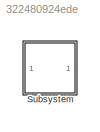
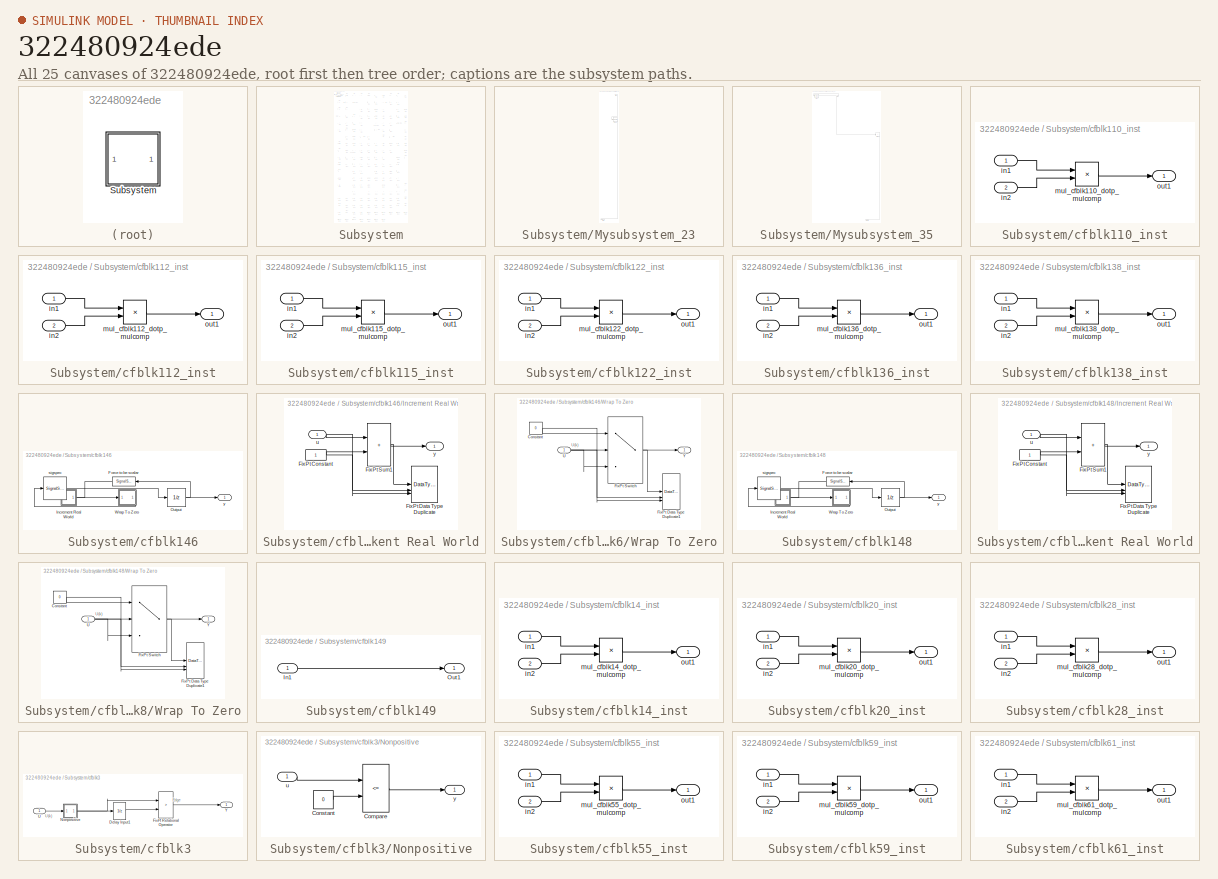
[diagram: thumbnail index - all 25 canvases of the model, root first then tree order]
MODEL slx_322480924ede
KIND model
CONFIG AbsTol = auto
CONFIG EnableMultiTasking = off
CONFIG FixedStep = auto
CONFIG MaxStep = auto
CONFIG MinStep = auto
CONFIG RelTol = 1e-3
CONFIG SampleTimeConstraint = Unconstrained
CONFIG SolverName = VariableStepAuto
CONFIG StartTime = 0.0
CONFIG StopTime = 10.0
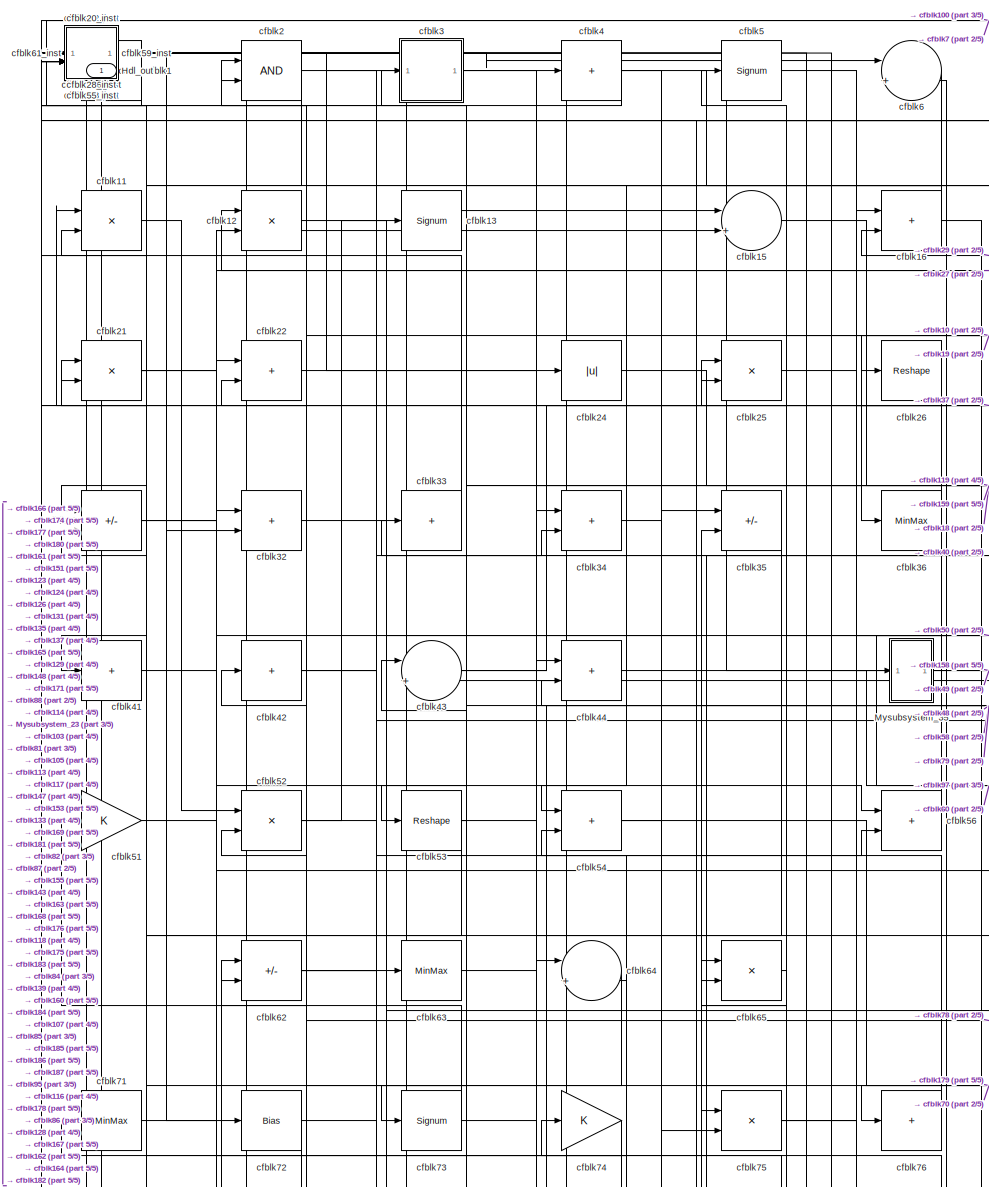
[diagram: Subsystem - part 1/5, top left region]
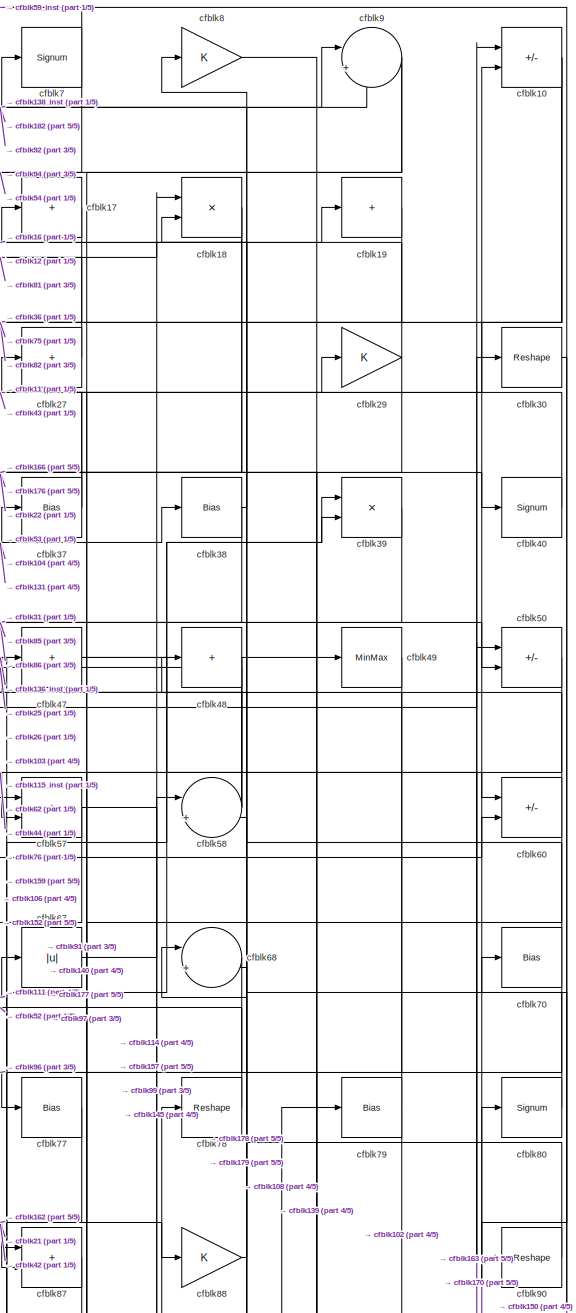
[diagram: Subsystem - part 2/5, top right region]
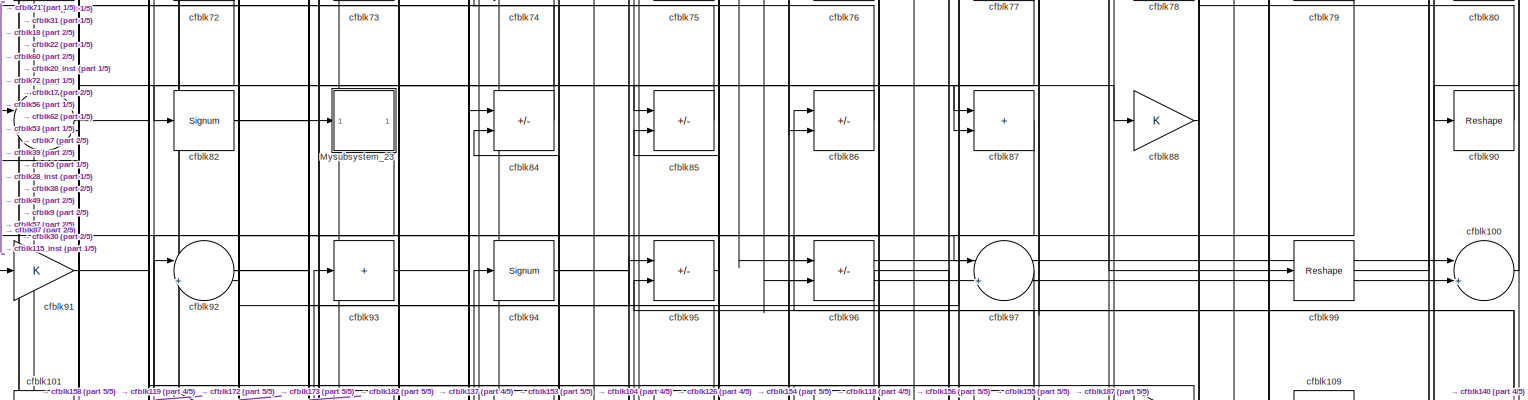
[diagram: Subsystem - part 3/5, full width, middle band]
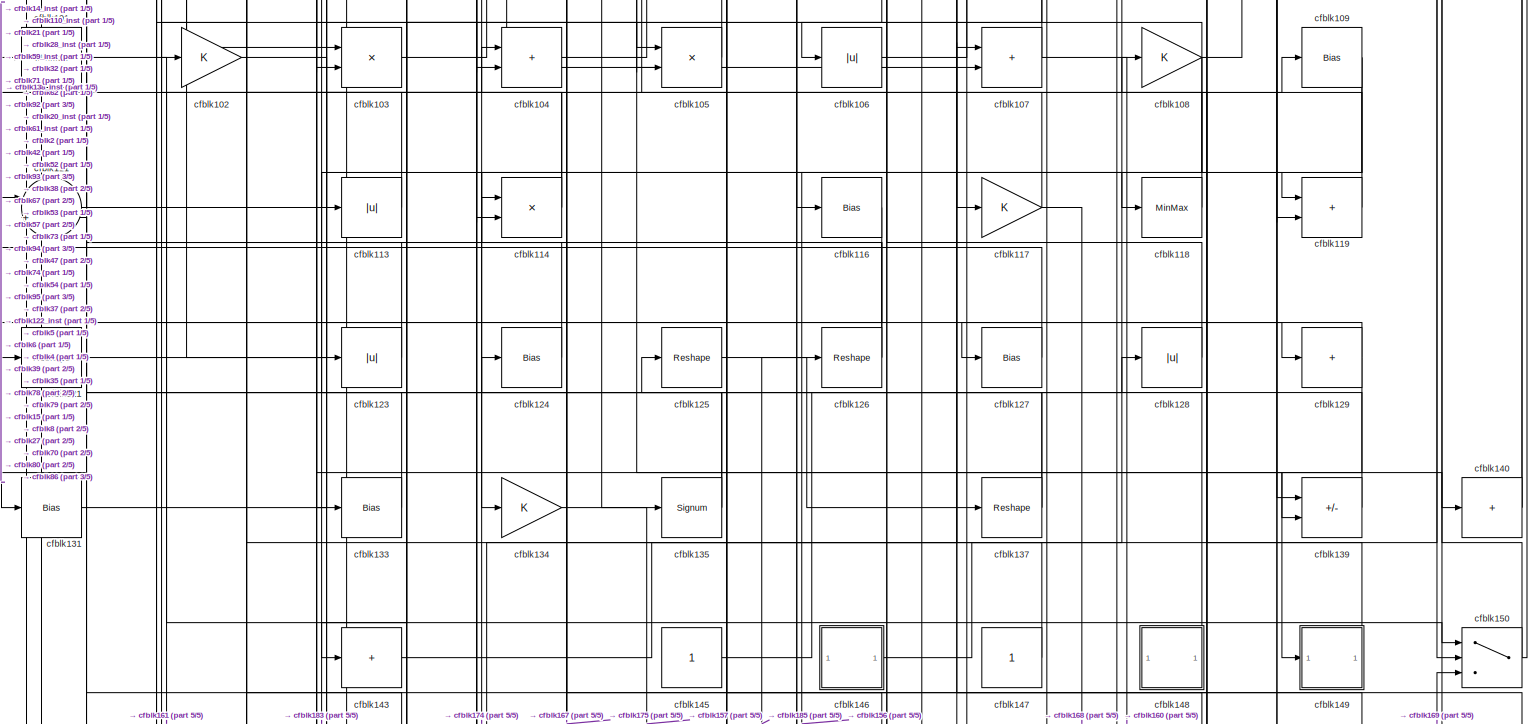
[diagram: Subsystem - part 4/5, full width, middle band]
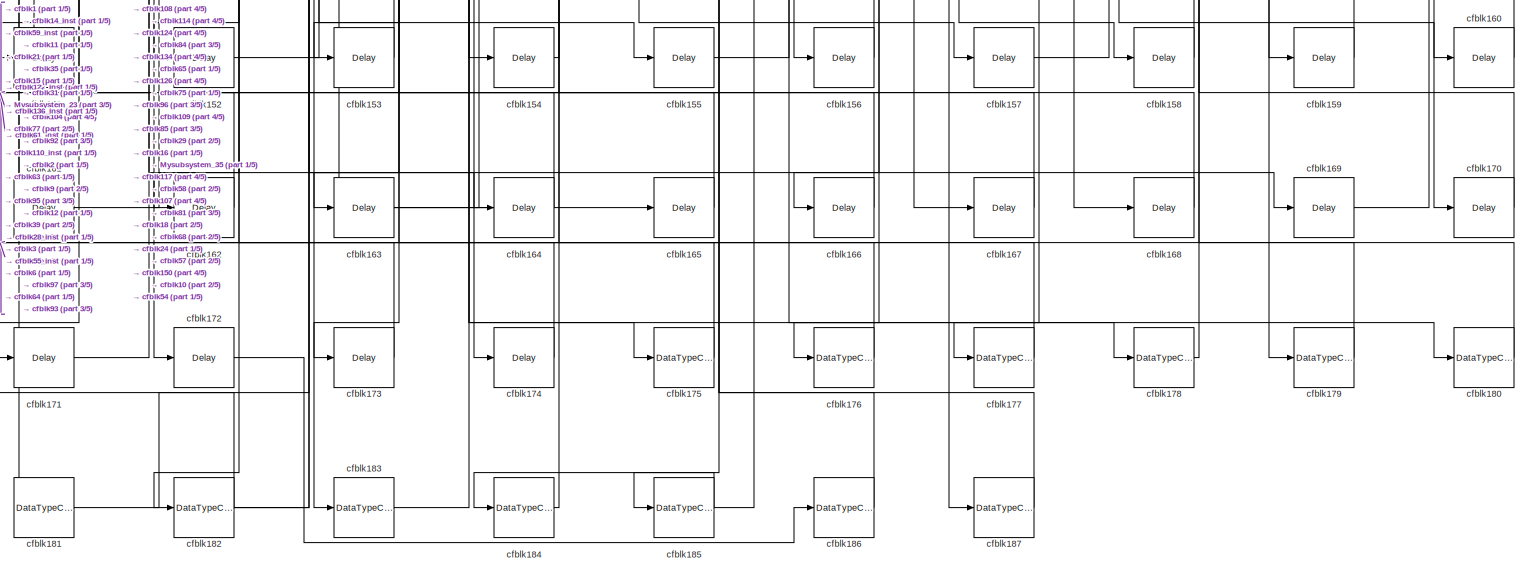
[diagram: Subsystem - part 5/5, full width, bottom band]
BLOCK [SubSystem] Subsystem
BLOCK [Outport] Subsystem/Hdl_out
  OutDataTypeStr = uint8
  SampleTime = 1
BLOCK [SubSystem] Subsystem/Mysubsystem_23
BLOCK [Inport] Subsystem/Mysubsystem_23/In1
  OutDataTypeStr = uint8
  PortDimensions = 1
  SampleTime = 1
BLOCK [Outport] Subsystem/Mysubsystem_23/Out1
  SampleTime = 1
BLOCK [Reshape] Subsystem/Mysubsystem_23/cfblk83
BLOCK [SubSystem] Subsystem/Mysubsystem_35
BLOCK [Inport] Subsystem/Mysubsystem_35/In1
  OutDataTypeStr = uint8
  PortDimensions = 1
  SampleTime = 1
BLOCK [Outport] Subsystem/Mysubsystem_35/Out1
  SampleTime = 1
BLOCK [Signum] Subsystem/Mysubsystem_35/cfblk23
BLOCK [Sum] Subsystem/Mysubsystem_35/cfblk69
  IconShape = rectangular
  Inputs = +
BLOCK [Reference] Subsystem/cfblk1  REF=hdlsllib/Logic and Bit
Operations/Bit Slice
  SourceBlock = hdlsllib/Logic and Bit\nOperations/Bit Slice
  SourceType = Bit Slice
BLOCK [Sum] Subsystem/cfblk10
  IconShape = rectangular
  Inputs = +-
  OutDataTypeStr = uint8
BLOCK [Sum] Subsystem/cfblk100
  Inputs = |++
  OutDataTypeStr = uint8
BLOCK [MinMax] Subsystem/cfblk101
  OutDataTypeStr = uint8
BLOCK [Gain] Subsystem/cfblk102
  OutDataTypeStr = uint8
BLOCK [Product] Subsystem/cfblk103
  Inputs = */
  OutDataTypeStr = uint8
  RndMeth = Zero
  SaturateOnIntegerOverflow = on
BLOCK [Sum] Subsystem/cfblk104
  IconShape = rectangular
  OutDataTypeStr = uint8
BLOCK [Product] Subsystem/cfblk105
  Inputs = */
  OutDataTypeStr = uint8
  RndMeth = Zero
  SaturateOnIntegerOverflow = on
BLOCK [Abs] Subsystem/cfblk106
  OutDataTypeStr = uint8
  SaturateOnIntegerOverflow = off
BLOCK [Sum] Subsystem/cfblk107
  IconShape = rectangular
  OutDataTypeStr = uint8
BLOCK [Gain] Subsystem/cfblk108
  OutDataTypeStr = uint8
BLOCK [Bias] Subsystem/cfblk109
  Bias = 0.0
  SaturateOnIntegerOverflow = off
BLOCK [Product] Subsystem/cfblk11
  Inputs = */
  OutDataTypeStr = uint8
  RndMeth = Zero
  SaturateOnIntegerOverflow = on
BLOCK [SubSystem] Subsystem/cfblk110_inst
BLOCK [Inport] Subsystem/cfblk110_inst/in1
  OutDataTypeStr = uint8
  SampleTime = 1
BLOCK [Inport] Subsystem/cfblk110_inst/in2
  OutDataTypeStr = uint8
  Port = 2
  SampleTime = 1
BLOCK [Product] Subsystem/cfblk110_inst/mul_cfblk110_dotp_mulcomp
  Inputs = **
  OutDataTypeStr = uint8
  SampleTime = 1
BLOCK [Outport] Subsystem/cfblk110_inst/out1
  OutDataTypeStr = uint8
  SampleTime = 1
BLOCK [Sum] Subsystem/cfblk111
  Inputs = |++
  OutDataTypeStr = uint8
BLOCK [SubSystem] Subsystem/cfblk112_inst
BLOCK [Inport] Subsystem/cfblk112_inst/in1
  OutDataTypeStr = uint8
  SampleTime = 1
BLOCK [Inport] Subsystem/cfblk112_inst/in2
  OutDataTypeStr = uint8
  Port = 2
  SampleTime = 1
BLOCK [Product] Subsystem/cfblk112_inst/mul_cfblk112_dotp_mulcomp
  Inputs = **
  OutDataTypeStr = uint8
  SampleTime = 1
BLOCK [Outport] Subsystem/cfblk112_inst/out1
  OutDataTypeStr = uint8
  SampleTime = 1
BLOCK [Abs] Subsystem/cfblk113
  OutDataTypeStr = uint8
  SaturateOnIntegerOverflow = off
BLOCK [Product] Subsystem/cfblk114
  Inputs = */
  OutDataTypeStr = uint8
  RndMeth = Zero
  SaturateOnIntegerOverflow = on
BLOCK [SubSystem] Subsystem/cfblk115_inst
BLOCK [Inport] Subsystem/cfblk115_inst/in1
  OutDataTypeStr = uint8
  SampleTime = 1
BLOCK [Inport] Subsystem/cfblk115_inst/in2
  OutDataTypeStr = uint8
  Port = 2
  SampleTime = 1
BLOCK [Product] Subsystem/cfblk115_inst/mul_cfblk115_dotp_mulcomp
  Inputs = **
  OutDataTypeStr = uint8
  SampleTime = 1
BLOCK [Outport] Subsystem/cfblk115_inst/out1
  OutDataTypeStr = uint8
  SampleTime = 1
BLOCK [Bias] Subsystem/cfblk116
  Bias = 0.0
  SaturateOnIntegerOverflow = off
BLOCK [Gain] Subsystem/cfblk117
  OutDataTypeStr = uint8
BLOCK [MinMax] Subsystem/cfblk118
  OutDataTypeStr = uint8
BLOCK [Sum] Subsystem/cfblk119
  IconShape = rectangular
  OutDataTypeStr = uint8
BLOCK [Product] Subsystem/cfblk12
  Inputs = */
  OutDataTypeStr = uint8
  RndMeth = Zero
  SaturateOnIntegerOverflow = on
BLOCK [Reshape] Subsystem/cfblk121
BLOCK [SubSystem] Subsystem/cfblk122_inst
BLOCK [Inport] Subsystem/cfblk122_inst/in1
  OutDataTypeStr = uint8
  SampleTime = 1
BLOCK [Inport] Subsystem/cfblk122_inst/in2
  OutDataTypeStr = uint8
  Port = 2
  SampleTime = 1
BLOCK [Product] Subsystem/cfblk122_inst/mul_cfblk122_dotp_mulcomp
  Inputs = **
  OutDataTypeStr = uint8
  SampleTime = 1
BLOCK [Outport] Subsystem/cfblk122_inst/out1
  OutDataTypeStr = uint8
  SampleTime = 1
BLOCK [Abs] Subsystem/cfblk123
  OutDataTypeStr = uint8
  SaturateOnIntegerOverflow = off
BLOCK [Bias] Subsystem/cfblk124
  Bias = 0.0
  SaturateOnIntegerOverflow = off
BLOCK [Reshape] Subsystem/cfblk125
BLOCK [Reshape] Subsystem/cfblk126
BLOCK [Bias] Subsystem/cfblk127
  Bias = 0.0
  SaturateOnIntegerOverflow = off
BLOCK [Abs] Subsystem/cfblk128
  OutDataTypeStr = uint8
  SaturateOnIntegerOverflow = off
BLOCK [Sum] Subsystem/cfblk129
  IconShape = rectangular
  Inputs = +
  OutDataTypeStr = uint8
BLOCK [Signum] Subsystem/cfblk13
BLOCK [Bias] Subsystem/cfblk131
  Bias = 0.0
  SaturateOnIntegerOverflow = off
BLOCK [Bias] Subsystem/cfblk133
  Bias = 0.0
  SaturateOnIntegerOverflow = off
BLOCK [Gain] Subsystem/cfblk134
  OutDataTypeStr = uint8
BLOCK [Signum] Subsystem/cfblk135
BLOCK [SubSystem] Subsystem/cfblk136_inst
BLOCK [Inport] Subsystem/cfblk136_inst/in1
  OutDataTypeStr = uint8
  SampleTime = 1
BLOCK [Inport] Subsystem/cfblk136_inst/in2
  OutDataTypeStr = uint8
  Port = 2
  SampleTime = 1
BLOCK [Product] Subsystem/cfblk136_inst/mul_cfblk136_dotp_mulcomp
  Inputs = **
  OutDataTypeStr = uint8
  SampleTime = 1
BLOCK [Outport] Subsystem/cfblk136_inst/out1
  OutDataTypeStr = uint8
  SampleTime = 1
BLOCK [Reshape] Subsystem/cfblk137
BLOCK [SubSystem] Subsystem/cfblk138_inst
BLOCK [Inport] Subsystem/cfblk138_inst/in1
  OutDataTypeStr = uint8
  SampleTime = 1
BLOCK [Inport] Subsystem/cfblk138_inst/in2
  OutDataTypeStr = uint8
  Port = 2
  SampleTime = 1
BLOCK [Product] Subsystem/cfblk138_inst/mul_cfblk138_dotp_mulcomp
  Inputs = **
  OutDataTypeStr = uint8
  SampleTime = 1
BLOCK [Outport] Subsystem/cfblk138_inst/out1
  OutDataTypeStr = uint8
  SampleTime = 1
BLOCK [Sum] Subsystem/cfblk139
  IconShape = rectangular
  Inputs = +-
  OutDataTypeStr = uint8
BLOCK [Sum] Subsystem/cfblk140
  IconShape = rectangular
  Inputs = +
  OutDataTypeStr = uint8
BLOCK [Sum] Subsystem/cfblk143
  IconShape = rectangular
  Inputs = +
  OutDataTypeStr = uint8
BLOCK [Constant] Subsystem/cfblk145
  OutDataTypeStr = uint8
  SampleTime = -1
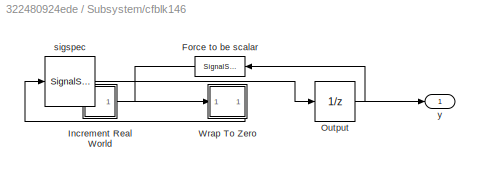
BLOCK [SubSystem] Subsystem/cfblk146
BLOCK [SignalSpecification] Subsystem/cfblk146/Force to be scalar
  Dimensions = 1
  DisableCoverage = on
BLOCK [SubSystem] Subsystem/cfblk146/Increment Real World
BLOCK [Constant] Subsystem/cfblk146/Increment Real World/FixPt Constant
  DisableCoverage = on
  OutDataTypeStr = Inherit: Inherit via back propagation
  SampleTime = -1
BLOCK [DataTypeDuplicate] Subsystem/cfblk146/Increment Real World/FixPt Data Type Duplicate
  DisableCoverage = on
  NumInputPorts = 3
BLOCK [Sum] Subsystem/cfblk146/Increment Real World/FixPt Sum1
  IconShape = rectangular
  InputSameDT = on
  LockScale = on
  OutDataTypeStr = Inherit: Inherit via back propagation
BLOCK [Inport] Subsystem/cfblk146/Increment Real World/u
  OutDataTypeStr = uint8
  SampleTime = 1
BLOCK [Outport] Subsystem/cfblk146/Increment Real World/y
  SampleTime = 1
BLOCK [UnitDelay] Subsystem/cfblk146/Output
  HasFrameUpgradeWarning = on
  InitialCondition = 0.0
  SampleTime = tsamp
BLOCK [SubSystem] Subsystem/cfblk146/Wrap To Zero
BLOCK [Constant] Subsystem/cfblk146/Wrap To Zero/Constant
  DisableCoverage = on
  OutDataTypeStr = Inherit: Inherit via back propagation
  SampleTime = -1
  Value = 0
BLOCK [DataTypeDuplicate] Subsystem/cfblk146/Wrap To Zero/FixPt Data Type Duplicate1
  DisableCoverage = on
  NumInputPorts = 3
BLOCK [Switch] Subsystem/cfblk146/Wrap To Zero/FixPt Switch
  Criteria = u2 > Threshold
  InputSameDT = off
  OutDataTypeStr = Inherit: Inherit via back propagation
  SaturateOnIntegerOverflow = off
  Threshold = Threshold
  ZeroCross = off
BLOCK [Inport] Subsystem/cfblk146/Wrap To Zero/U
  OutDataTypeStr = uint8
  SampleTime = 1
BLOCK [Outport] Subsystem/cfblk146/Wrap To Zero/Y
  SampleTime = 1
BLOCK [SignalSpecification] Subsystem/cfblk146/sigspec
  Dimensions = 1
  OutDataTypeStr = uint8
BLOCK [Outport] Subsystem/cfblk146/y
  SampleTime = 1
BLOCK [Constant] Subsystem/cfblk147
  OutDataTypeStr = uint8
  SampleTime = -1
BLOCK [SubSystem] Subsystem/cfblk148
BLOCK [SignalSpecification] Subsystem/cfblk148/Force to be scalar
  Dimensions = 1
  DisableCoverage = on
BLOCK [SubSystem] Subsystem/cfblk148/Increment Real World
BLOCK [Constant] Subsystem/cfblk148/Increment Real World/FixPt Constant
  DisableCoverage = on
  OutDataTypeStr = Inherit: Inherit via back propagation
  SampleTime = -1
BLOCK [DataTypeDuplicate] Subsystem/cfblk148/Increment Real World/FixPt Data Type Duplicate
  DisableCoverage = on
  NumInputPorts = 3
BLOCK [Sum] Subsystem/cfblk148/Increment Real World/FixPt Sum1
  IconShape = rectangular
  InputSameDT = on
  LockScale = on
  OutDataTypeStr = Inherit: Inherit via back propagation
BLOCK [Inport] Subsystem/cfblk148/Increment Real World/u
  OutDataTypeStr = uint8
  SampleTime = 1
BLOCK [Outport] Subsystem/cfblk148/Increment Real World/y
  SampleTime = 1
BLOCK [UnitDelay] Subsystem/cfblk148/Output
  HasFrameUpgradeWarning = on
  InitialCondition = 0.0
  SampleTime = tsamp
BLOCK [SubSystem] Subsystem/cfblk148/Wrap To Zero
BLOCK [Constant] Subsystem/cfblk148/Wrap To Zero/Constant
  DisableCoverage = on
  OutDataTypeStr = Inherit: Inherit via back propagation
  SampleTime = -1
  Value = 0
BLOCK [DataTypeDuplicate] Subsystem/cfblk148/Wrap To Zero/FixPt Data Type Duplicate1
  DisableCoverage = on
  NumInputPorts = 3
BLOCK [Switch] Subsystem/cfblk148/Wrap To Zero/FixPt Switch
  Criteria = u2 > Threshold
  InputSameDT = off
  OutDataTypeStr = Inherit: Inherit via back propagation
  SaturateOnIntegerOverflow = off
  Threshold = Threshold
  ZeroCross = off
BLOCK [Inport] Subsystem/cfblk148/Wrap To Zero/U
  OutDataTypeStr = uint8
  SampleTime = 1
BLOCK [Outport] Subsystem/cfblk148/Wrap To Zero/Y
  SampleTime = 1
BLOCK [SignalSpecification] Subsystem/cfblk148/sigspec
  Dimensions = 1
  OutDataTypeStr = uint8
BLOCK [Outport] Subsystem/cfblk148/y
  SampleTime = 1
BLOCK [SubSystem] Subsystem/cfblk149
BLOCK [Inport] Subsystem/cfblk149/In1
  OutDataTypeStr = uint8
  PortDimensions = 1
  SampleTime = 1
BLOCK [Outport] Subsystem/cfblk149/Out1
  SampleTime = 1
BLOCK [SubSystem] Subsystem/cfblk14_inst
BLOCK [Inport] Subsystem/cfblk14_inst/in1
  OutDataTypeStr = uint8
  SampleTime = 1
BLOCK [Inport] Subsystem/cfblk14_inst/in2
  OutDataTypeStr = uint8
  Port = 2
  SampleTime = 1
BLOCK [Product] Subsystem/cfblk14_inst/mul_cfblk14_dotp_mulcomp
  Inputs = **
  OutDataTypeStr = uint8
  SampleTime = 1
BLOCK [Outport] Subsystem/cfblk14_inst/out1
  OutDataTypeStr = uint8
  SampleTime = 1
BLOCK [Sum] Subsystem/cfblk15
  Inputs = |++
  OutDataTypeStr = uint8
BLOCK [Switch] Subsystem/cfblk150
  InputSameDT = off
  OutDataTypeStr = uint8
  SaturateOnIntegerOverflow = off
BLOCK [Delay] Subsystem/cfblk151
  InputPortMap = u0
  SampleTime = 1
BLOCK [Delay] Subsystem/cfblk152
  InputPortMap = u0
  SampleTime = 1
BLOCK [Delay] Subsystem/cfblk153
  InputPortMap = u0
  SampleTime = 1
BLOCK [Delay] Subsystem/cfblk154
  InputPortMap = u0
  SampleTime = 1
BLOCK [Delay] Subsystem/cfblk155
  InputPortMap = u0
  SampleTime = 1
BLOCK [Delay] Subsystem/cfblk156
  InputPortMap = u0
  SampleTime = 1
BLOCK [Delay] Subsystem/cfblk157
  InputPortMap = u0
  SampleTime = 1
BLOCK [Delay] Subsystem/cfblk158
  InputPortMap = u0
  SampleTime = 1
BLOCK [Delay] Subsystem/cfblk159
  InputPortMap = u0
  SampleTime = 1
BLOCK [Sum] Subsystem/cfblk16
  IconShape = rectangular
  OutDataTypeStr = uint8
BLOCK [Delay] Subsystem/cfblk160
  InputPortMap = u0
  SampleTime = 1
BLOCK [Delay] Subsystem/cfblk161
  InputPortMap = u0
  SampleTime = 1
BLOCK [Delay] Subsystem/cfblk162
  InputPortMap = u0
  SampleTime = 1
BLOCK [Delay] Subsystem/cfblk163
  InputPortMap = u0
  SampleTime = 1
BLOCK [Delay] Subsystem/cfblk164
  InputPortMap = u0
  SampleTime = 1
BLOCK [Delay] Subsystem/cfblk165
  InputPortMap = u0
  SampleTime = 1
BLOCK [Delay] Subsystem/cfblk166
  InputPortMap = u0
  SampleTime = 1
BLOCK [Delay] Subsystem/cfblk167
  InputPortMap = u0
  SampleTime = 1
BLOCK [Delay] Subsystem/cfblk168
  InputPortMap = u0
  SampleTime = 1
BLOCK [Delay] Subsystem/cfblk169
  InputPortMap = u0
  SampleTime = 1
BLOCK [Sum] Subsystem/cfblk17
  IconShape = rectangular
  Inputs = +
  OutDataTypeStr = uint8
BLOCK [Delay] Subsystem/cfblk170
  InputPortMap = u0
  SampleTime = 1
BLOCK [Delay] Subsystem/cfblk171
  InputPortMap = u0
  SampleTime = 1
BLOCK [Delay] Subsystem/cfblk172
  InputPortMap = u0
  SampleTime = 1
BLOCK [Delay] Subsystem/cfblk173
  InputPortMap = u0
  SampleTime = 1
BLOCK [Delay] Subsystem/cfblk174
  InputPortMap = u0
  SampleTime = 1
BLOCK [DataTypeConversion] Subsystem/cfblk175
  OutDataTypeStr = uint8
  RndMeth = Floor
  SaturateOnIntegerOverflow = off
BLOCK [DataTypeConversion] Subsystem/cfblk176
  OutDataTypeStr = uint8
  RndMeth = Floor
  SaturateOnIntegerOverflow = off
BLOCK [DataTypeConversion] Subsystem/cfblk177
  OutDataTypeStr = uint8
  RndMeth = Floor
  SaturateOnIntegerOverflow = off
BLOCK [DataTypeConversion] Subsystem/cfblk178
  OutDataTypeStr = uint8
  RndMeth = Floor
  SaturateOnIntegerOverflow = off
BLOCK [DataTypeConversion] Subsystem/cfblk179
  OutDataTypeStr = uint8
  RndMeth = Floor
  SaturateOnIntegerOverflow = off
BLOCK [Product] Subsystem/cfblk18
  Inputs = */
  OutDataTypeStr = uint8
  RndMeth = Zero
  SaturateOnIntegerOverflow = on
BLOCK [DataTypeConversion] Subsystem/cfblk180
  OutDataTypeStr = uint8
  RndMeth = Floor
  SaturateOnIntegerOverflow = off
BLOCK [DataTypeConversion] Subsystem/cfblk181
  OutDataTypeStr = uint8
  RndMeth = Floor
  SaturateOnIntegerOverflow = off
BLOCK [DataTypeConversion] Subsystem/cfblk182
  OutDataTypeStr = uint8
  RndMeth = Floor
  SaturateOnIntegerOverflow = off
BLOCK [DataTypeConversion] Subsystem/cfblk183
  OutDataTypeStr = uint8
  RndMeth = Floor
  SaturateOnIntegerOverflow = off
BLOCK [DataTypeConversion] Subsystem/cfblk184
  OutDataTypeStr = uint8
  RndMeth = Floor
  SaturateOnIntegerOverflow = off
BLOCK [DataTypeConversion] Subsystem/cfblk185
  OutDataTypeStr = uint8
  RndMeth = Floor
  SaturateOnIntegerOverflow = off
BLOCK [DataTypeConversion] Subsystem/cfblk186
  OutDataTypeStr = uint8
  RndMeth = Floor
  SaturateOnIntegerOverflow = off
BLOCK [DataTypeConversion] Subsystem/cfblk187
  OutDataTypeStr = uint8
  RndMeth = Floor
  SaturateOnIntegerOverflow = off
BLOCK [Sum] Subsystem/cfblk19
  IconShape = rectangular
  Inputs = +
  OutDataTypeStr = uint8
BLOCK [Logic] Subsystem/cfblk2
  AllPortsSameDT = off
  OutDataTypeStr = boolean
BLOCK [SubSystem] Subsystem/cfblk20_inst
BLOCK [Inport] Subsystem/cfblk20_inst/in1
  OutDataTypeStr = uint8
  SampleTime = 1
BLOCK [Inport] Subsystem/cfblk20_inst/in2
  OutDataTypeStr = uint8
  Port = 2
  SampleTime = 1
BLOCK [Product] Subsystem/cfblk20_inst/mul_cfblk20_dotp_mulcomp
  Inputs = **
  OutDataTypeStr = uint8
  SampleTime = 1
BLOCK [Outport] Subsystem/cfblk20_inst/out1
  OutDataTypeStr = uint8
  SampleTime = 1
BLOCK [Product] Subsystem/cfblk21
  Inputs = */
  OutDataTypeStr = uint8
  RndMeth = Zero
  SaturateOnIntegerOverflow = on
BLOCK [Sum] Subsystem/cfblk22
  IconShape = rectangular
  OutDataTypeStr = uint8
BLOCK [Abs] Subsystem/cfblk24
  OutDataTypeStr = uint8
  SaturateOnIntegerOverflow = off
BLOCK [Product] Subsystem/cfblk25
  Inputs = */
  OutDataTypeStr = uint8
  RndMeth = Zero
  SaturateOnIntegerOverflow = on
BLOCK [Reshape] Subsystem/cfblk26
BLOCK [Sum] Subsystem/cfblk27
  IconShape = rectangular
  Inputs = +
  OutDataTypeStr = uint8
BLOCK [SubSystem] Subsystem/cfblk28_inst
BLOCK [Inport] Subsystem/cfblk28_inst/in1
  OutDataTypeStr = uint8
  SampleTime = 1
BLOCK [Inport] Subsystem/cfblk28_inst/in2
  OutDataTypeStr = uint8
  Port = 2
  SampleTime = 1
BLOCK [Product] Subsystem/cfblk28_inst/mul_cfblk28_dotp_mulcomp
  Inputs = **
  OutDataTypeStr = uint8
  SampleTime = 1
BLOCK [Outport] Subsystem/cfblk28_inst/out1
  OutDataTypeStr = uint8
  SampleTime = 1
BLOCK [Gain] Subsystem/cfblk29
  OutDataTypeStr = uint8
BLOCK [SubSystem] Subsystem/cfblk3
BLOCK [UnitDelay] Subsystem/cfblk3/Delay Input1
  Description = Store in Global RAM
  DisableCoverage = on
  HasFrameUpgradeWarning = on
  InitialCondition = vinit
  SampleTime = -1
BLOCK [RelationalOperator] Subsystem/cfblk3/FixPt Relational Operator
  InputSameDT = off
  Operator = >
  OutDataTypeStr = fixdt(0, 8)
  ZeroCross = off
BLOCK [SubSystem] Subsystem/cfblk3/Nonpositive
BLOCK [RelationalOperator] Subsystem/cfblk3/Nonpositive/Compare
  Operator = <=
  OutDataTypeStr = boolean
  ZeroCross = off
BLOCK [Constant] Subsystem/cfblk3/Nonpositive/Constant
  DisableCoverage = on
  OutDataTypeStr = Inherit: Inherit via back propagation
  PreserveConstantTs = on
  SampleTime = -1
  Value = 0
BLOCK [Inport] Subsystem/cfblk3/Nonpositive/u
  OutDataTypeStr = uint8
  SampleTime = 1
BLOCK [Outport] Subsystem/cfblk3/Nonpositive/y
  SampleTime = 1
BLOCK [Inport] Subsystem/cfblk3/U
  OutDataTypeStr = uint8
  SampleTime = 1
BLOCK [Outport] Subsystem/cfblk3/Y
  SampleTime = 1
BLOCK [Reshape] Subsystem/cfblk30
BLOCK [Sum] Subsystem/cfblk31
  IconShape = rectangular
  Inputs = +-
  OutDataTypeStr = uint8
BLOCK [Sum] Subsystem/cfblk32
  IconShape = rectangular
  OutDataTypeStr = uint8
BLOCK [Sum] Subsystem/cfblk33
  IconShape = rectangular
  Inputs = +
  OutDataTypeStr = uint8
BLOCK [Sum] Subsystem/cfblk34
  IconShape = rectangular
  OutDataTypeStr = uint8
BLOCK [Sum] Subsystem/cfblk35
  IconShape = rectangular
  Inputs = +-
  OutDataTypeStr = uint8
BLOCK [MinMax] Subsystem/cfblk36
  OutDataTypeStr = uint8
BLOCK [Bias] Subsystem/cfblk37
  Bias = 0.0
  SaturateOnIntegerOverflow = off
BLOCK [Bias] Subsystem/cfblk38
  Bias = 0.0
  SaturateOnIntegerOverflow = off
BLOCK [Product] Subsystem/cfblk39
  Inputs = */
  OutDataTypeStr = uint8
  RndMeth = Zero
  SaturateOnIntegerOverflow = on
BLOCK [Sum] Subsystem/cfblk4
  IconShape = rectangular
  Inputs = +
  OutDataTypeStr = uint8
BLOCK [Signum] Subsystem/cfblk40
BLOCK [Sum] Subsystem/cfblk41
  IconShape = rectangular
  Inputs = +
  OutDataTypeStr = uint8
BLOCK [Sum] Subsystem/cfblk42
  IconShape = rectangular
  Inputs = +
  OutDataTypeStr = uint8
BLOCK [Sum] Subsystem/cfblk43
  Inputs = |++
  OutDataTypeStr = uint8
BLOCK [Sum] Subsystem/cfblk44
  IconShape = rectangular
  OutDataTypeStr = uint8
BLOCK [Sum] Subsystem/cfblk47
  IconShape = rectangular
  Inputs = +
  OutDataTypeStr = uint8
BLOCK [Sum] Subsystem/cfblk48
  IconShape = rectangular
  Inputs = +
  OutDataTypeStr = uint8
BLOCK [MinMax] Subsystem/cfblk49
  OutDataTypeStr = uint8
BLOCK [Signum] Subsystem/cfblk5
BLOCK [Sum] Subsystem/cfblk50
  IconShape = rectangular
  Inputs = +-
  OutDataTypeStr = uint8
BLOCK [Gain] Subsystem/cfblk51
  OutDataTypeStr = uint8
BLOCK [Product] Subsystem/cfblk52
  Inputs = */
  OutDataTypeStr = uint8
  RndMeth = Zero
  SaturateOnIntegerOverflow = on
BLOCK [Reshape] Subsystem/cfblk53
BLOCK [Sum] Subsystem/cfblk54
  IconShape = rectangular
  OutDataTypeStr = uint8
BLOCK [SubSystem] Subsystem/cfblk55_inst
BLOCK [Inport] Subsystem/cfblk55_inst/in1
  OutDataTypeStr = uint8
  SampleTime = 1
BLOCK [Inport] Subsystem/cfblk55_inst/in2
  OutDataTypeStr = uint8
  Port = 2
  SampleTime = 1
BLOCK [Product] Subsystem/cfblk55_inst/mul_cfblk55_dotp_mulcomp
  Inputs = **
  OutDataTypeStr = uint8
  SampleTime = 1
BLOCK [Outport] Subsystem/cfblk55_inst/out1
  OutDataTypeStr = uint8
  SampleTime = 1
BLOCK [Sum] Subsystem/cfblk56
  IconShape = rectangular
  OutDataTypeStr = uint8
BLOCK [Sum] Subsystem/cfblk57
  IconShape = rectangular
  OutDataTypeStr = uint8
BLOCK [Sum] Subsystem/cfblk58
  Inputs = |++
  OutDataTypeStr = uint8
BLOCK [SubSystem] Subsystem/cfblk59_inst
BLOCK [Inport] Subsystem/cfblk59_inst/in1
  OutDataTypeStr = uint8
  SampleTime = 1
BLOCK [Inport] Subsystem/cfblk59_inst/in2
  OutDataTypeStr = uint8
  Port = 2
  SampleTime = 1
BLOCK [Product] Subsystem/cfblk59_inst/mul_cfblk59_dotp_mulcomp
  Inputs = **
  OutDataTypeStr = uint8
  SampleTime = 1
BLOCK [Outport] Subsystem/cfblk59_inst/out1
  OutDataTypeStr = uint8
  SampleTime = 1
BLOCK [Sum] Subsystem/cfblk6
  Inputs = |++
  OutDataTypeStr = uint8
BLOCK [Sum] Subsystem/cfblk60
  IconShape = rectangular
  Inputs = +-
  OutDataTypeStr = uint8
BLOCK [SubSystem] Subsystem/cfblk61_inst
BLOCK [Inport] Subsystem/cfblk61_inst/in1
  OutDataTypeStr = uint8
  SampleTime = 1
BLOCK [Inport] Subsystem/cfblk61_inst/in2
  OutDataTypeStr = uint8
  Port = 2
  SampleTime = 1
BLOCK [Product] Subsystem/cfblk61_inst/mul_cfblk61_dotp_mulcomp
  Inputs = **
  OutDataTypeStr = uint8
  SampleTime = 1
BLOCK [Outport] Subsystem/cfblk61_inst/out1
  OutDataTypeStr = uint8
  SampleTime = 1
BLOCK [Sum] Subsystem/cfblk62
  IconShape = rectangular
  Inputs = +-
  OutDataTypeStr = uint8
BLOCK [MinMax] Subsystem/cfblk63
  OutDataTypeStr = uint8
BLOCK [Sum] Subsystem/cfblk64
  Inputs = |++
  OutDataTypeStr = uint8
BLOCK [Product] Subsystem/cfblk65
  Inputs = */
  OutDataTypeStr = uint8
  RndMeth = Zero
  SaturateOnIntegerOverflow = on
BLOCK [Abs] Subsystem/cfblk67
  OutDataTypeStr = uint8
  SaturateOnIntegerOverflow = off
BLOCK [Sum] Subsystem/cfblk68
  Inputs = |++
  OutDataTypeStr = uint8
BLOCK [Signum] Subsystem/cfblk7
BLOCK [Bias] Subsystem/cfblk70
  Bias = 0.0
  SaturateOnIntegerOverflow = off
BLOCK [MinMax] Subsystem/cfblk71
  OutDataTypeStr = uint8
BLOCK [Bias] Subsystem/cfblk72
  Bias = 0.0
  SaturateOnIntegerOverflow = off
BLOCK [Signum] Subsystem/cfblk73
BLOCK [Gain] Subsystem/cfblk74
  OutDataTypeStr = uint8
BLOCK [Product] Subsystem/cfblk75
  Inputs = */
  OutDataTypeStr = uint8
  RndMeth = Zero
  SaturateOnIntegerOverflow = on
BLOCK [Sum] Subsystem/cfblk76
  IconShape = rectangular
  Inputs = +
  OutDataTypeStr = uint8
BLOCK [Bias] Subsystem/cfblk77
  Bias = 0.0
  SaturateOnIntegerOverflow = off
BLOCK [Reshape] Subsystem/cfblk78
BLOCK [Bias] Subsystem/cfblk79
  Bias = 0.0
  SaturateOnIntegerOverflow = off
BLOCK [Gain] Subsystem/cfblk8
  OutDataTypeStr = uint8
BLOCK [Signum] Subsystem/cfblk80
BLOCK [Sum] Subsystem/cfblk81
  Inputs = |++
  OutDataTypeStr = uint8
BLOCK [Signum] Subsystem/cfblk82
BLOCK [Sum] Subsystem/cfblk84
  IconShape = rectangular
  Inputs = +-
  OutDataTypeStr = uint8
BLOCK [Sum] Subsystem/cfblk85
  IconShape = rectangular
  Inputs = +-
  OutDataTypeStr = uint8
BLOCK [Sum] Subsystem/cfblk86
  IconShape = rectangular
  Inputs = +-
  OutDataTypeStr = uint8
BLOCK [Sum] Subsystem/cfblk87
  IconShape = rectangular
  OutDataTypeStr = uint8
BLOCK [Gain] Subsystem/cfblk88
  OutDataTypeStr = uint8
BLOCK [Sum] Subsystem/cfblk9
  Inputs = |++
  OutDataTypeStr = uint8
BLOCK [Reshape] Subsystem/cfblk90
BLOCK [Gain] Subsystem/cfblk91
  OutDataTypeStr = uint8
BLOCK [Sum] Subsystem/cfblk92
  Inputs = |++
  OutDataTypeStr = uint8
BLOCK [Sum] Subsystem/cfblk93
  IconShape = rectangular
  Inputs = +
  OutDataTypeStr = uint8
BLOCK [Signum] Subsystem/cfblk94
BLOCK [Sum] Subsystem/cfblk95
  IconShape = rectangular
  Inputs = +-
  OutDataTypeStr = uint8
BLOCK [Sum] Subsystem/cfblk96
  IconShape = rectangular
  Inputs = +-
  OutDataTypeStr = uint8
BLOCK [Sum] Subsystem/cfblk97
  Inputs = |++
  OutDataTypeStr = uint8
BLOCK [Reshape] Subsystem/cfblk99
ANNOTATION Subsystem/cfblk146/Wrap To Zero: U(k)
ANNOTATION Subsystem/cfblk148/Wrap To Zero: U(k)
ANNOTATION Subsystem/cfblk3: Edge
ANNOTATION Subsystem/cfblk3: U(k)
LINE Subsystem/Mysubsystem_23/In1:1 -> Subsystem/Mysubsystem_23/cfblk83:1
LINE Subsystem/Mysubsystem_23/cfblk83:1 -> Subsystem/Mysubsystem_23/Out1:1
LINE Subsystem/Mysubsystem_23:1 -> Subsystem/cfblk172:1
LINE Subsystem/Mysubsystem_35/In1:1 -> Subsystem/Mysubsystem_35/cfblk23:1
LINE Subsystem/Mysubsystem_35/cfblk23:1 -> Subsystem/Mysubsystem_35/cfblk69:1
LINE Subsystem/Mysubsystem_35/cfblk69:1 -> Subsystem/Mysubsystem_35/Out1:1
LINE Subsystem/Mysubsystem_35:1 -> Subsystem/cfblk158:1
LINE Subsystem/cfblk100:1 -> Subsystem/cfblk115_inst:1
LINE Subsystem/cfblk101:1 -> Subsystem/cfblk150:1
LINE Subsystem/cfblk102:1 -> Subsystem/cfblk119:1
LINE Subsystem/cfblk103:1 -> Subsystem/cfblk47:1
LINE Subsystem/cfblk104:1 -> Subsystem/cfblk37:1
LINE Subsystem/cfblk105:1 -> Subsystem/cfblk122_inst:2
LINE Subsystem/cfblk106:1 -> Subsystem/cfblk39:1
NET Subsystem/cfblk107:1 -> Subsystem/cfblk160:1, Subsystem/cfblk35:2
NET Subsystem/cfblk108:1 -> Subsystem/cfblk106:1, Subsystem/cfblk174:1, Subsystem/cfblk183:1, Subsystem/cfblk79:1
NET Subsystem/cfblk109:1 -> Subsystem/cfblk134:1, Subsystem/cfblk156:1
NET Subsystem/cfblk10:1 -> Subsystem/cfblk170:1, Subsystem/cfblk36:1, Subsystem/cfblk57:2
LINE Subsystem/cfblk110_inst/in1:1 -> Subsystem/cfblk110_inst/mul_cfblk110_dotp_mulcomp:1
LINE Subsystem/cfblk110_inst/in2:1 -> Subsystem/cfblk110_inst/mul_cfblk110_dotp_mulcomp:2
LINE Subsystem/cfblk110_inst/mul_cfblk110_dotp_mulcomp:1 -> Subsystem/cfblk110_inst/out1:1
LINE Subsystem/cfblk110_inst:1 -> Subsystem/cfblk32:2
LINE Subsystem/cfblk111:1 -> Subsystem/cfblk67:1
LINE Subsystem/cfblk112_inst/in1:1 -> Subsystem/cfblk112_inst/mul_cfblk112_dotp_mulcomp:1
LINE Subsystem/cfblk112_inst/in2:1 -> Subsystem/cfblk112_inst/mul_cfblk112_dotp_mulcomp:2
LINE Subsystem/cfblk112_inst/mul_cfblk112_dotp_mulcomp:1 -> Subsystem/cfblk112_inst/out1:1
LINE Subsystem/cfblk112_inst:1 -> Subsystem/cfblk6:1
LINE Subsystem/cfblk113:1 -> Subsystem/cfblk42:1
NET Subsystem/cfblk114:1 -> Subsystem/cfblk138_inst:1, Subsystem/cfblk62:1
LINE Subsystem/cfblk115_inst/in1:1 -> Subsystem/cfblk115_inst/mul_cfblk115_dotp_mulcomp:1
LINE Subsystem/cfblk115_inst/in2:1 -> Subsystem/cfblk115_inst/mul_cfblk115_dotp_mulcomp:2
LINE Subsystem/cfblk115_inst/mul_cfblk115_dotp_mulcomp:1 -> Subsystem/cfblk115_inst/out1:1
NET Subsystem/cfblk115_inst:1 -> Subsystem/Hdl_out:1, Subsystem/cfblk14_inst:1, Subsystem/cfblk24:1
LINE Subsystem/cfblk116:1 -> Subsystem/cfblk121:1
NET Subsystem/cfblk117:1 -> Subsystem/cfblk168:1, Subsystem/cfblk2:1
LINE Subsystem/cfblk118:1 -> Subsystem/cfblk95:2
LINE Subsystem/cfblk119:1 -> Subsystem/cfblk92:1
LINE Subsystem/cfblk11:1 -> Subsystem/cfblk52:1
LINE Subsystem/cfblk121:1 -> Subsystem/cfblk109:1
LINE Subsystem/cfblk122_inst/in1:1 -> Subsystem/cfblk122_inst/mul_cfblk122_dotp_mulcomp:1
LINE Subsystem/cfblk122_inst/in2:1 -> Subsystem/cfblk122_inst/mul_cfblk122_dotp_mulcomp:2
LINE Subsystem/cfblk122_inst/mul_cfblk122_dotp_mulcomp:1 -> Subsystem/cfblk122_inst/out1:1
LINE Subsystem/cfblk122_inst:1 -> Subsystem/cfblk20_inst:2
LINE Subsystem/cfblk123:1 -> Subsystem/cfblk28_inst:1
LINE Subsystem/cfblk124:1 -> Subsystem/cfblk59_inst:1
LINE Subsystem/cfblk125:1 -> Subsystem/cfblk137:1
NET Subsystem/cfblk126:1 -> Subsystem/cfblk110_inst:2, Subsystem/cfblk94:1
LINE Subsystem/cfblk127:1 -> Subsystem/cfblk111:1
LINE Subsystem/cfblk128:1 -> Subsystem/cfblk6:2
NET Subsystem/cfblk129:1 -> Subsystem/cfblk127:1, Subsystem/cfblk149:1
LINE Subsystem/cfblk12:1 -> Subsystem/cfblk155:1
LINE Subsystem/cfblk131:1 -> Subsystem/cfblk38:1
LINE Subsystem/cfblk133:1 -> Subsystem/cfblk101:1
LINE Subsystem/cfblk134:1 -> Subsystem/cfblk157:1
NET Subsystem/cfblk135:1 -> Subsystem/cfblk125:1, Subsystem/cfblk21:1
LINE Subsystem/cfblk136_inst/in1:1 -> Subsystem/cfblk136_inst/mul_cfblk136_dotp_mulcomp:1
LINE Subsystem/cfblk136_inst/in2:1 -> Subsystem/cfblk136_inst/mul_cfblk136_dotp_mulcomp:2
LINE Subsystem/cfblk136_inst/mul_cfblk136_dotp_mulcomp:1 -> Subsystem/cfblk136_inst/out1:1
LINE Subsystem/cfblk136_inst:1 -> Subsystem/cfblk49:1
NET Subsystem/cfblk137:1 -> Subsystem/cfblk21:2, Subsystem/cfblk93:1
LINE Subsystem/cfblk138_inst/in1:1 -> Subsystem/cfblk138_inst/mul_cfblk138_dotp_mulcomp:1
LINE Subsystem/cfblk138_inst/in2:1 -> Subsystem/cfblk138_inst/mul_cfblk138_dotp_mulcomp:2
LINE Subsystem/cfblk138_inst/mul_cfblk138_dotp_mulcomp:1 -> Subsystem/cfblk138_inst/out1:1
NET Subsystem/cfblk138_inst:1 -> Subsystem/cfblk14_inst:2, Subsystem/cfblk4:1
LINE Subsystem/cfblk139:1 -> Subsystem/cfblk74:1
LINE Subsystem/cfblk13:1 -> Subsystem/cfblk15:1
NET Subsystem/cfblk140:1 -> Subsystem/cfblk27:1, Subsystem/cfblk86:1
LINE Subsystem/cfblk143:1 -> Subsystem/cfblk107:1
LINE Subsystem/cfblk145:1 -> Subsystem/cfblk78:1
LINE Subsystem/cfblk146:1 -> Subsystem/cfblk128:1
LINE Subsystem/cfblk147:1 -> Subsystem/cfblk62:2
LINE Subsystem/cfblk148:1 -> Subsystem/cfblk32:1
LINE Subsystem/cfblk149/In1:1 -> Subsystem/cfblk149/Out1:1
LINE Subsystem/cfblk149:1 -> Subsystem/cfblk108:1
LINE Subsystem/cfblk14_inst/in1:1 -> Subsystem/cfblk14_inst/mul_cfblk14_dotp_mulcomp:1
LINE Subsystem/cfblk14_inst/in2:1 -> Subsystem/cfblk14_inst/mul_cfblk14_dotp_mulcomp:2
LINE Subsystem/cfblk14_inst/mul_cfblk14_dotp_mulcomp:1 -> Subsystem/cfblk14_inst/out1:1
NET Subsystem/cfblk14_inst:1 -> Subsystem/cfblk107:2, Subsystem/cfblk161:1
NET Subsystem/cfblk150:1 -> Subsystem/cfblk70:1, Subsystem/cfblk80:1
LINE Subsystem/cfblk151:1 -> Subsystem/cfblk1:1
LINE Subsystem/cfblk152:1 -> Subsystem/cfblk39:2
LINE Subsystem/cfblk153:1 -> Subsystem/cfblk22:2
LINE Subsystem/cfblk154:1 -> Subsystem/cfblk84:2
LINE Subsystem/cfblk155:1 -> Subsystem/cfblk96:2
LINE Subsystem/cfblk156:1 -> Subsystem/cfblk85:2
LINE Subsystem/cfblk157:1 -> Subsystem/cfblk58:1
LINE Subsystem/cfblk158:1 -> Subsystem/cfblk81:1
LINE Subsystem/cfblk159:1 -> Subsystem/cfblk57:1
LINE Subsystem/cfblk15:1 -> Subsystem/cfblk119:2
LINE Subsystem/cfblk160:1 -> Subsystem/cfblk54:2
LINE Subsystem/cfblk161:1 -> Subsystem/cfblk104:1
LINE Subsystem/cfblk162:1 -> Subsystem/cfblk61_inst:1
LINE Subsystem/cfblk163:1 -> Subsystem/cfblk10:1
LINE Subsystem/cfblk164:1 -> Subsystem/cfblk122_inst:1
LINE Subsystem/cfblk165:1 -> Subsystem/cfblk11:2
LINE Subsystem/cfblk166:1 -> Subsystem/cfblk136_inst:2
LINE Subsystem/cfblk167:1 -> Subsystem/cfblk114:1
LINE Subsystem/cfblk168:1 -> Subsystem/cfblk43:1
LINE Subsystem/cfblk169:1 -> Subsystem/cfblk150:3
NET Subsystem/cfblk16:1 -> Subsystem/cfblk112_inst:2, Subsystem/cfblk167:1
LINE Subsystem/cfblk170:1 -> Subsystem/cfblk18:2
LINE Subsystem/cfblk171:1 -> Subsystem/cfblk15:2
LINE Subsystem/cfblk172:1 -> Subsystem/cfblk186:1
LINE Subsystem/cfblk173:1 -> Subsystem/cfblk92:2
LINE Subsystem/cfblk174:1 -> Subsystem/cfblk28_inst:2
LINE Subsystem/cfblk175:1 -> Subsystem/cfblk124:1
LINE Subsystem/cfblk176:1 -> Subsystem/cfblk3:1
LINE Subsystem/cfblk177:1 -> Subsystem/cfblk55_inst:1
LINE Subsystem/cfblk178:1 -> Subsystem/cfblk68:1
LINE Subsystem/cfblk179:1 -> Subsystem/cfblk68:2
LINE Subsystem/cfblk17:1 -> Subsystem/cfblk82:1
LINE Subsystem/cfblk180:1 -> Subsystem/cfblk55_inst:2
LINE Subsystem/cfblk181:1 -> Subsystem/cfblk63:1
NET Subsystem/cfblk182:1 -> Subsystem/cfblk110_inst:1, Subsystem/cfblk95:1, Subsystem/cfblk9:2
LINE Subsystem/cfblk183:1 -> Subsystem/cfblk64:1
LINE Subsystem/cfblk184:1 -> Subsystem/cfblk64:2
NET Subsystem/cfblk185:1 -> Subsystem/cfblk126:1, Subsystem/cfblk184:1
LINE Subsystem/cfblk186:1 -> Subsystem/cfblk65:1
LINE Subsystem/cfblk187:1 -> Subsystem/cfblk65:2
NET Subsystem/cfblk18:1 -> Subsystem/cfblk176:1, Subsystem/cfblk53:1
LINE Subsystem/cfblk19:1 -> Subsystem/cfblk75:1
LINE Subsystem/cfblk1:1 -> Subsystem/cfblk61_inst:2
LINE Subsystem/cfblk20_inst/in1:1 -> Subsystem/cfblk20_inst/mul_cfblk20_dotp_mulcomp:1
LINE Subsystem/cfblk20_inst/in2:1 -> Subsystem/cfblk20_inst/mul_cfblk20_dotp_mulcomp:2
LINE Subsystem/cfblk20_inst/mul_cfblk20_dotp_mulcomp:1 -> Subsystem/cfblk20_inst/out1:1
NET Subsystem/cfblk20_inst:1 -> Subsystem/cfblk100:2, Subsystem/cfblk103:1
NET Subsystem/cfblk21:1 -> Subsystem/cfblk103:2, Subsystem/cfblk171:1, Subsystem/cfblk88:1
LINE Subsystem/cfblk22:1 -> Subsystem/cfblk40:1
LINE Subsystem/cfblk24:1 -> Subsystem/cfblk159:1
LINE Subsystem/cfblk25:1 -> Subsystem/Mysubsystem_35:1
LINE Subsystem/cfblk26:1 -> Subsystem/cfblk73:1
LINE Subsystem/cfblk27:1 -> Subsystem/cfblk12:1
LINE Subsystem/cfblk28_inst/in1:1 -> Subsystem/cfblk28_inst/mul_cfblk28_dotp_mulcomp:1
LINE Subsystem/cfblk28_inst/in2:1 -> Subsystem/cfblk28_inst/mul_cfblk28_dotp_mulcomp:2
LINE Subsystem/cfblk28_inst/mul_cfblk28_dotp_mulcomp:1 -> Subsystem/cfblk28_inst/out1:1
NET Subsystem/cfblk28_inst:1 -> Subsystem/cfblk100:1, Subsystem/cfblk72:1
NET Subsystem/cfblk29:1 -> Subsystem/cfblk166:1, Subsystem/cfblk16:2
NET Subsystem/cfblk2:1 -> Subsystem/cfblk169:1, Subsystem/cfblk41:1
LINE Subsystem/cfblk30:1 -> Subsystem/cfblk90:1
NET Subsystem/cfblk31:1 -> Subsystem/cfblk164:1, Subsystem/cfblk50:2
LINE Subsystem/cfblk32:1 -> Subsystem/cfblk105:1
LINE Subsystem/cfblk33:1 -> Subsystem/cfblk112_inst:1
LINE Subsystem/cfblk34:1 -> Subsystem/cfblk35:1
LINE Subsystem/cfblk35:1 -> Subsystem/cfblk151:1
LINE Subsystem/cfblk36:1 -> Subsystem/cfblk20_inst:1
NET Subsystem/cfblk37:1 -> Subsystem/cfblk136_inst:1, Subsystem/cfblk16:1
NET Subsystem/cfblk38:1 -> Subsystem/cfblk86:2, Subsystem/cfblk8:1
LINE Subsystem/cfblk39:1 -> Subsystem/cfblk85:1
LINE Subsystem/cfblk3:1 -> Subsystem/cfblk175:1
LINE Subsystem/cfblk40:1 -> Subsystem/cfblk11:1
LINE Subsystem/cfblk41:1 -> Subsystem/cfblk56:1
NET Subsystem/cfblk42:1 -> Subsystem/cfblk105:2, Subsystem/cfblk87:2
NET Subsystem/cfblk43:1 -> Subsystem/cfblk10:2, Subsystem/cfblk25:1
LINE Subsystem/cfblk44:1 -> Subsystem/cfblk60:1
LINE Subsystem/cfblk47:1 -> Subsystem/cfblk150:2
NET Subsystem/cfblk48:1 -> Subsystem/cfblk44:2, Subsystem/cfblk76:1
LINE Subsystem/cfblk49:1 -> Subsystem/cfblk96:1
NET Subsystem/cfblk4:1 -> Subsystem/cfblk117:1, Subsystem/cfblk2:2, Subsystem/cfblk75:2
LINE Subsystem/cfblk50:1 -> Subsystem/cfblk87:1
LINE Subsystem/cfblk51:1 -> Subsystem/cfblk12:2
NET Subsystem/cfblk52:1 -> Subsystem/cfblk133:1, Subsystem/cfblk13:1
NET Subsystem/cfblk53:1 -> Subsystem/cfblk131:1, Subsystem/cfblk143:1, Subsystem/cfblk84:1
NET Subsystem/cfblk54:1 -> Subsystem/cfblk135:1, Subsystem/cfblk179:1
LINE Subsystem/cfblk55_inst/in1:1 -> Subsystem/cfblk55_inst/mul_cfblk55_dotp_mulcomp:1
LINE Subsystem/cfblk55_inst/in2:1 -> Subsystem/cfblk55_inst/mul_cfblk55_dotp_mulcomp:2
LINE Subsystem/cfblk55_inst/mul_cfblk55_dotp_mulcomp:1 -> Subsystem/cfblk55_inst/out1:1
LINE Subsystem/cfblk55_inst:1 -> Subsystem/cfblk165:1
LINE Subsystem/cfblk56:1 -> Subsystem/cfblk33:1
NET Subsystem/cfblk57:1 -> Subsystem/cfblk114:2, Subsystem/cfblk99:1
NET Subsystem/cfblk58:1 -> Subsystem/cfblk25:2, Subsystem/cfblk26:1, Subsystem/cfblk43:2
LINE Subsystem/cfblk59_inst/in1:1 -> Subsystem/cfblk59_inst/mul_cfblk59_dotp_mulcomp:1
LINE Subsystem/cfblk59_inst/in2:1 -> Subsystem/cfblk59_inst/mul_cfblk59_dotp_mulcomp:2
LINE Subsystem/cfblk59_inst/mul_cfblk59_dotp_mulcomp:1 -> Subsystem/cfblk59_inst/out1:1
NET Subsystem/cfblk59_inst:1 -> Subsystem/Mysubsystem_23:1, Subsystem/cfblk181:1
LINE Subsystem/cfblk5:1 -> Subsystem/cfblk116:1
NET Subsystem/cfblk60:1 -> Subsystem/cfblk115_inst:2, Subsystem/cfblk77:1
LINE Subsystem/cfblk61_inst/in1:1 -> Subsystem/cfblk61_inst/mul_cfblk61_dotp_mulcomp:1
LINE Subsystem/cfblk61_inst/in2:1 -> Subsystem/cfblk61_inst/mul_cfblk61_dotp_mulcomp:2
LINE Subsystem/cfblk61_inst/mul_cfblk61_dotp_mulcomp:1 -> Subsystem/cfblk61_inst/out1:1
LINE Subsystem/cfblk61_inst:1 -> Subsystem/cfblk123:1
NET Subsystem/cfblk62:1 -> Subsystem/cfblk139:2, Subsystem/cfblk50:1, Subsystem/cfblk97:1
LINE Subsystem/cfblk63:1 -> Subsystem/cfblk180:1
LINE Subsystem/cfblk64:1 -> Subsystem/cfblk182:1
LINE Subsystem/cfblk65:1 -> Subsystem/cfblk185:1
LINE Subsystem/cfblk67:1 -> Subsystem/cfblk19:1
LINE Subsystem/cfblk68:1 -> Subsystem/cfblk177:1
NET Subsystem/cfblk6:1 -> Subsystem/cfblk163:1, Subsystem/cfblk31:1
NET Subsystem/cfblk70:1 -> Subsystem/cfblk111:2, Subsystem/cfblk138_inst:2
LINE Subsystem/cfblk71:1 -> Subsystem/cfblk129:1
NET Subsystem/cfblk72:1 -> Subsystem/cfblk34:2, Subsystem/cfblk81:2
NET Subsystem/cfblk73:1 -> Subsystem/cfblk118:1, Subsystem/cfblk51:1
LINE Subsystem/cfblk74:1 -> Subsystem/cfblk113:1
NET Subsystem/cfblk75:1 -> Subsystem/cfblk178:1, Subsystem/cfblk29:1
LINE Subsystem/cfblk76:1 -> Subsystem/cfblk34:1
LINE Subsystem/cfblk77:1 -> Subsystem/cfblk162:1
LINE Subsystem/cfblk78:1 -> Subsystem/cfblk52:2
NET Subsystem/cfblk79:1 -> Subsystem/cfblk102:1, Subsystem/cfblk44:1
NET Subsystem/cfblk7:1 -> Subsystem/cfblk54:1, Subsystem/cfblk59_inst:2
LINE Subsystem/cfblk80:1 -> Subsystem/cfblk17:1
LINE Subsystem/cfblk81:1 -> Subsystem/cfblk18:1
LINE Subsystem/cfblk82:1 -> Subsystem/cfblk56:2
LINE Subsystem/cfblk84:1 -> Subsystem/cfblk71:1
LINE Subsystem/cfblk85:1 -> Subsystem/cfblk22:1
LINE Subsystem/cfblk86:1 -> Subsystem/cfblk31:2
LINE Subsystem/cfblk87:1 -> Subsystem/cfblk91:1
LINE Subsystem/cfblk88:1 -> Subsystem/cfblk58:2
LINE Subsystem/cfblk8:1 -> Subsystem/cfblk139:1
LINE Subsystem/cfblk90:1 -> Subsystem/cfblk48:1
LINE Subsystem/cfblk91:1 -> Subsystem/cfblk60:2
NET Subsystem/cfblk92:1 -> Subsystem/cfblk104:2, Subsystem/cfblk9:1
LINE Subsystem/cfblk93:1 -> Subsystem/cfblk154:1
NET Subsystem/cfblk94:1 -> Subsystem/cfblk140:1, Subsystem/cfblk7:1
LINE Subsystem/cfblk95:1 -> Subsystem/cfblk5:1
NET Subsystem/cfblk96:1 -> Subsystem/cfblk173:1, Subsystem/cfblk187:1
LINE Subsystem/cfblk97:1 -> Subsystem/cfblk153:1
LINE Subsystem/cfblk99:1 -> Subsystem/cfblk30:1
NET Subsystem/cfblk9:1 -> Subsystem/cfblk152:1, Subsystem/cfblk97:2
note: NET lines group one-source signal fan-out (src -> all destinations, sorted); 1:1 wires keep LINE
